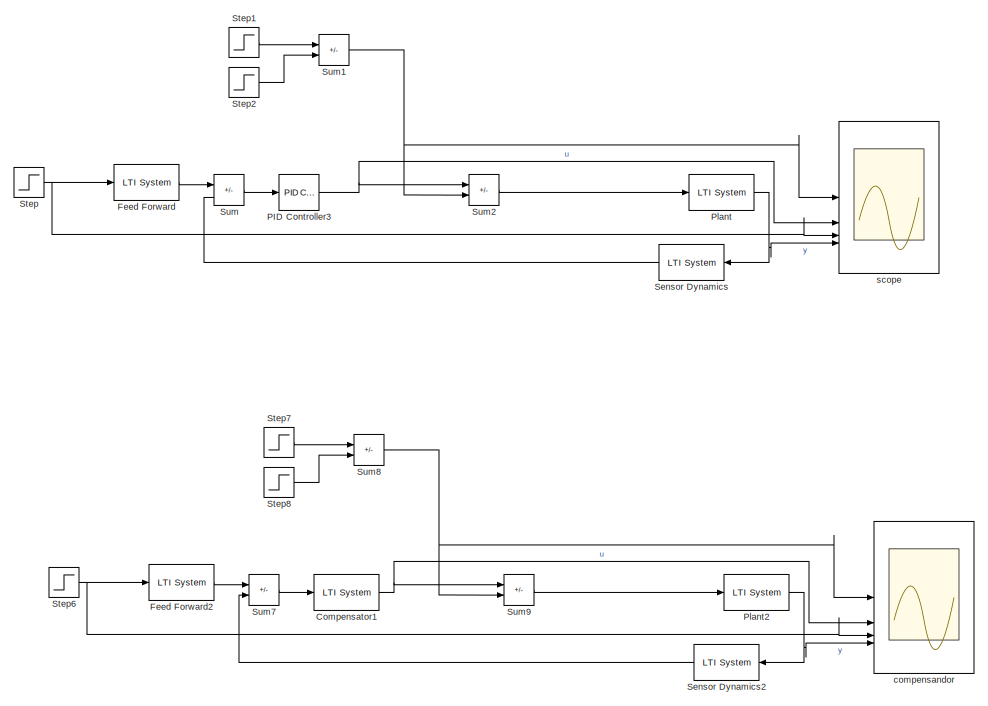
[diagram: root canvas - part 1/2, left side, full height]
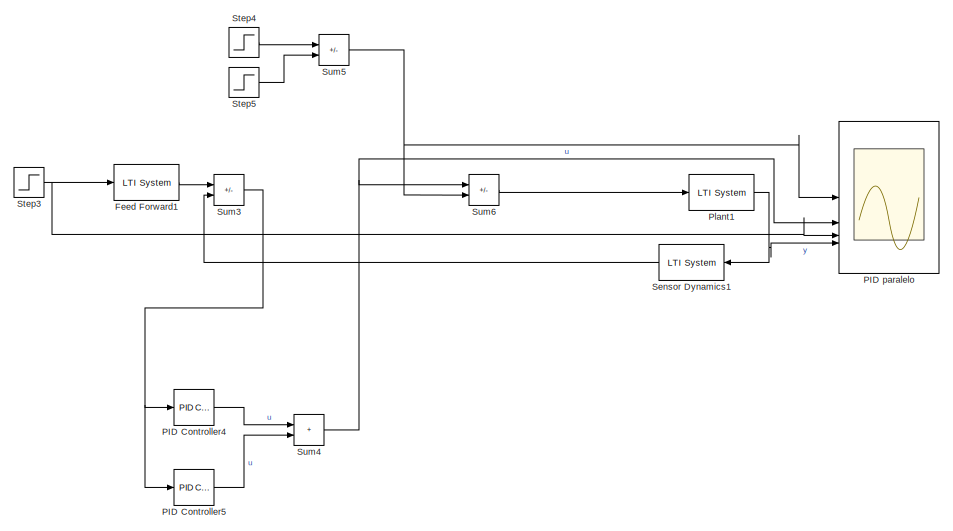
[diagram: root canvas - part 2/2, middle right region]
MODEL slx_3b2c89a14c4e
KIND model
CONFIG AbsTol = auto
CONFIG EnableMultiTasking = off
CONFIG FixedStep = auto
CONFIG MaxStep = auto
CONFIG MinStep = auto
CONFIG RelTol = 1e-3
CONFIG SampleTimeConstraint = Unconstrained
CONFIG SolverName = VariableStepAuto
CONFIG StartTime = 0.0
CONFIG StopTime = 3
BLOCK [Reference] Compensator1  REF=cstblocks/LTI System
  SourceBlock = cstblocks/LTI System
  SourceType = LTI Block
BLOCK [Reference] Feed Forward  REF=cstblocks/LTI System
  SourceBlock = cstblocks/LTI System
  SourceType = LTI Block
BLOCK [Reference] Feed Forward1  REF=cstblocks/LTI System
  SourceBlock = cstblocks/LTI System
  SourceType = LTI Block
BLOCK [Reference] Feed Forward2  REF=cstblocks/LTI System
  SourceBlock = cstblocks/LTI System
  SourceType = LTI Block
BLOCK [Reference] PID Controller3  REF=slpidlib/PID Controller
  LibrarySourceBlock = simulink/Continuous/PID Controller
  SourceBlock = slpidlib/PID Controller
  SourceType = PID 1dof
BLOCK [Reference] PID Controller4  REF=slpidlib/PID Controller
  LibrarySourceBlock = simulink/Continuous/PID Controller
  SourceBlock = slpidlib/PID Controller
  SourceType = PID 1dof
BLOCK [Reference] PID Controller5  REF=slpidlib/PID Controller
  LibrarySourceBlock = simulink/Continuous/PID Controller
  SourceBlock = slpidlib/PID Controller
  SourceType = PID 1dof
BLOCK [Scope] PID paralelo
  Floating = off
  NumInputPorts = 4
  ScopeSpecificationString = Simulink.scopes.TimeScopeBlockCfg('CurrentConfiguration', extmgr.ConfigurationSet(extmgr.Configuration('Core','General UI',true),extmgr.Configuration('Core','Source UI',true),extmgr.Configuration('Sources','WiredSimulink',true,'DataLoggingVariableName','ScopeData1'),extmgr.Configuration('Visuals','Time Domain',true,'SerializedDisplays',{struct('MinYLimReal','-1.20231','MaxYLimReal','10.82077','YLa...<+1794ch>
BLOCK [Reference] Plant  REF=cstblocks/LTI System
  SourceBlock = cstblocks/LTI System
  SourceType = LTI Block
BLOCK [Reference] Plant1  REF=cstblocks/LTI System
  SourceBlock = cstblocks/LTI System
  SourceType = LTI Block
BLOCK [Reference] Plant2  REF=cstblocks/LTI System
  SourceBlock = cstblocks/LTI System
  SourceType = LTI Block
BLOCK [Reference] Sensor Dynamics  REF=cstblocks/LTI System
  SourceBlock = cstblocks/LTI System
  SourceType = LTI Block
BLOCK [Reference] Sensor Dynamics1  REF=cstblocks/LTI System
  SourceBlock = cstblocks/LTI System
  SourceType = LTI Block
BLOCK [Reference] Sensor Dynamics2  REF=cstblocks/LTI System
  SourceBlock = cstblocks/LTI System
  SourceType = LTI Block
BLOCK [Step] Step
  After = 4
  SampleTime = 0
  Time = 0.1
BLOCK [Step] Step1
  SampleTime = 0
  Time = 2
BLOCK [Step] Step2
  SampleTime = 0
  Time = 2.5
BLOCK [Step] Step3
  After = 4
  SampleTime = 0
  Time = 0.1
BLOCK [Step] Step4
  SampleTime = 0
  Time = 2
BLOCK [Step] Step5
  SampleTime = 0
  Time = 2.5
BLOCK [Step] Step6
  After = 4
  SampleTime = 0
  Time = 0.1
BLOCK [Step] Step7
  SampleTime = 0
  Time = 2
BLOCK [Step] Step8
  SampleTime = 0
  Time = 2.5
BLOCK [Sum] Sum
  IconShape = rectangular
  Inputs = +-
BLOCK [Sum] Sum1
  IconShape = rectangular
  Inputs = +-
BLOCK [Sum] Sum2
  IconShape = rectangular
  Inputs = +-
BLOCK [Sum] Sum3
  IconShape = rectangular
  Inputs = +-
BLOCK [Sum] Sum4
  IconShape = rectangular
BLOCK [Sum] Sum5
  IconShape = rectangular
  Inputs = +-
BLOCK [Sum] Sum6
  IconShape = rectangular
  Inputs = +-
BLOCK [Sum] Sum7
  IconShape = rectangular
  Inputs = +-
BLOCK [Sum] Sum8
  IconShape = rectangular
  Inputs = +-
BLOCK [Sum] Sum9
  IconShape = rectangular
  Inputs = +-
BLOCK [Scope] compensandor
  Floating = off
  NumInputPorts = 4
  ScopeSpecificationString = Simulink.scopes.TimeScopeBlockCfg('CurrentConfiguration', extmgr.ConfigurationSet(extmgr.Configuration('Core','General UI',true),extmgr.Configuration('Core','Source UI',true),extmgr.Configuration('Sources','WiredSimulink',true,'DataLoggingVariableName','ScopeData2'),extmgr.Configuration('Visuals','Time Domain',true,'SerializedDisplays',{struct('MinYLimReal','-1.20231','MaxYLimReal','6.14834','YLab...<+1828ch>
BLOCK [Scope] scope
  Floating = off
  NumInputPorts = 4
  ScopeSpecificationString = Simulink.scopes.TimeScopeBlockCfg('CurrentConfiguration', extmgr.ConfigurationSet(extmgr.Configuration('Core','General UI',true,'FigureColor',[1 1 1]),extmgr.Configuration('Core','Source UI',true),extmgr.Configuration('Sources','WiredSimulink',true),extmgr.Configuration('Visuals','Time Domain',true,'SerializedDisplays',{struct('MinYLimReal','-0.5963','MaxYLimReal','5.3667','YLabelReal','','MinYLim...<+2379ch>
NET Compensator1:1 -> Sum9:1, compensandor:2
LINE Feed Forward1:1 -> Sum3:1
LINE Feed Forward2:1 -> Sum7:1
LINE Feed Forward:1 -> Sum:1
NET PID Controller3:1 -> Sum2:1, scope:2
LINE PID Controller4:1 -> Sum4:1
LINE PID Controller5:1 -> Sum4:2
NET Plant1:1 -> PID paralelo:4, Sensor Dynamics1:1
NET Plant2:1 -> Sensor Dynamics2:1, compensandor:4
NET Plant:1 -> Sensor Dynamics:1, scope:4
LINE Sensor Dynamics1:1 -> Sum3:2
LINE Sensor Dynamics2:1 -> Sum7:2
LINE Sensor Dynamics:1 -> Sum:2
LINE Step1:1 -> Sum1:1
LINE Step2:1 -> Sum1:2
NET Step3:1 -> Feed Forward1:1, PID paralelo:3
LINE Step4:1 -> Sum5:1
LINE Step5:1 -> Sum5:2
NET Step6:1 -> Feed Forward2:1, compensandor:3
LINE Step7:1 -> Sum8:1
LINE Step8:1 -> Sum8:2
NET Step:1 -> Feed Forward:1, scope:3
NET Sum1:1 -> Sum2:2, scope:1
LINE Sum2:1 -> Plant:1
NET Sum3:1 -> PID Controller4:1, PID Controller5:1
NET Sum4:1 -> PID paralelo:2, Sum6:1
NET Sum5:1 -> PID paralelo:1, Sum6:2
LINE Sum6:1 -> Plant1:1
LINE Sum7:1 -> Compensator1:1
NET Sum8:1 -> Sum9:2, compensandor:1
LINE Sum9:1 -> Plant2:1
LINE Sum:1 -> PID Controller3:1
note: NET lines group one-source signal fan-out (src -> all destinations, sorted); 1:1 wires keep LINE
